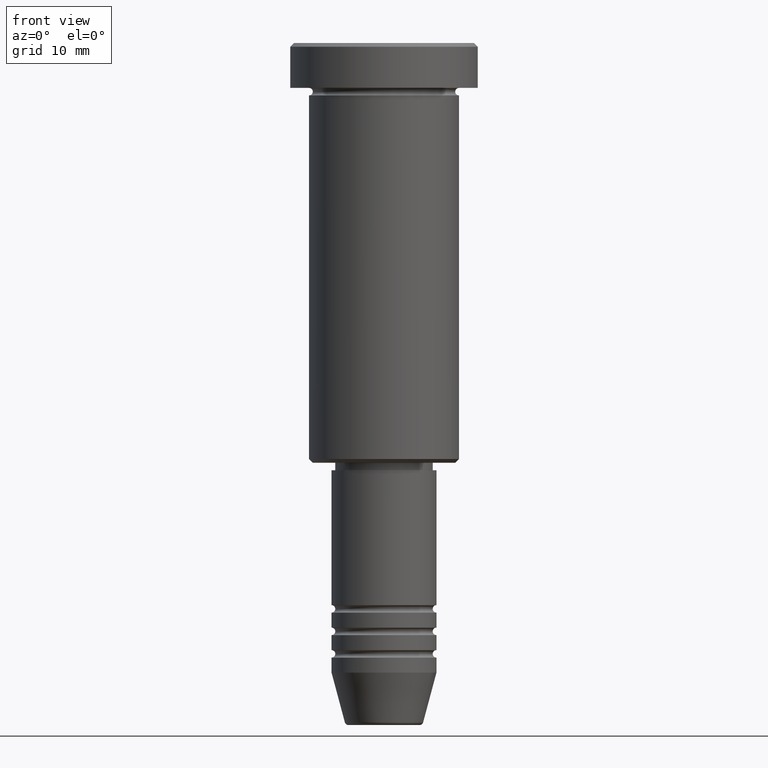
[diagram: clean part render]
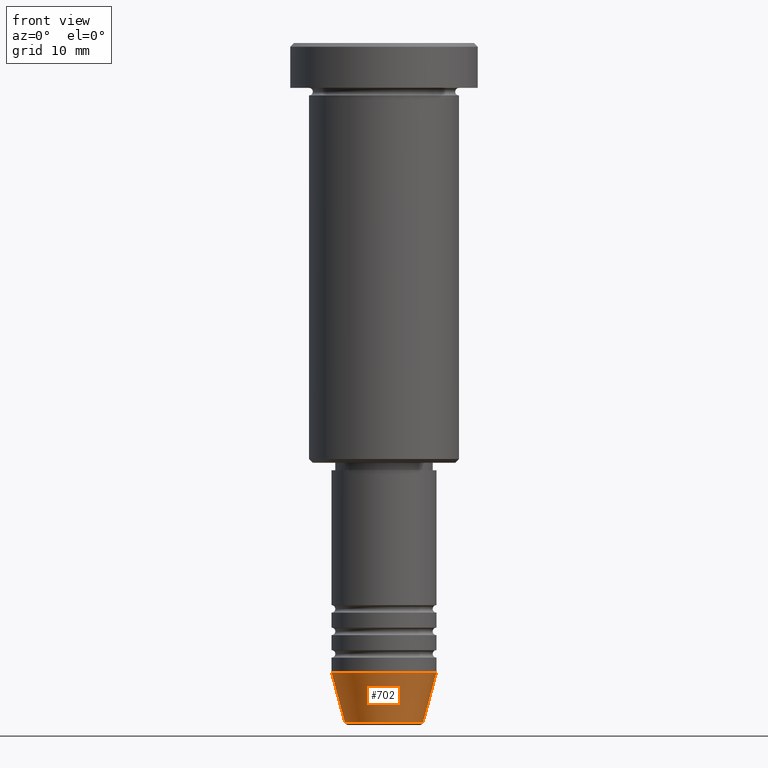
[diagram: same view with one face highlighted and labeled with its STEP entity id]
A machine part, front view. The second image highlights one B-rep face of the part: STEP entity #702.
In plain terms, the highlighted conical surface has half-angle 15 deg.
Its self-contained STEP definition (entity closure, byte-faithful):
#14 = VERTEX_POINT ( 'NONE', #1176 ) ;
#20 = EDGE_LOOP ( 'NONE', ( #448, #486, #604, #716 ) ) ;
#25 = AXIS2_PLACEMENT_3D ( 'NONE', #256, #170, #800 ) ;
#31 = CARTESIAN_POINT ( 'NONE',  ( 7.000000000000000000, 0.000000000000000000, -84.00000000000000000 ) ) ;
#45 = EDGE_CURVE ( 'NONE', #166, #644, #156, .T. ) ;
#140 = AXIS2_PLACEMENT_3D ( 'NONE', #309, #574, #671 ) ;
#149 = EDGE_CURVE ( 'NONE', #516, #166, #741, .T. ) ;
#156 = CIRCLE ( 'NONE', #970, 7.000000000000000000 ) ;
#166 = VERTEX_POINT ( 'NONE', #1122 ) ;
#170 = DIRECTION ( 'NONE',  ( -0.000000000000000000, -0.000000000000000000, 1.000000000000000000 ) ) ;
#198 = CIRCLE ( 'NONE', #140, 5.223655072137193045 ) ;
#256 = CARTESIAN_POINT ( 'NONE',  ( 0.000000000000000000, 0.000000000000000000, -84.00000000000000000 ) ) ;
#298 = CARTESIAN_POINT ( 'NONE',  ( 7.000000000000000000, 0.000000000000000000, -84.00000000000000000 ) ) ;
#309 = CARTESIAN_POINT ( 'NONE',  ( 0.000000000000000000, 0.000000000000000000, -90.62940952255124216 ) ) ;
#317 = CARTESIAN_POINT ( 'NONE',  ( -5.223655072137193045, 7.484830028987060174E-16, -90.62940952255124216 ) ) ;
#388 = DIRECTION ( 'NONE',  ( 0.2588190451025213501, 0.000000000000000000, 0.9659258262890680902 ) ) ;
#448 = ORIENTED_EDGE ( 'NONE', *, *, #149, .F. ) ;
#472 = DIRECTION ( 'NONE',  ( -0.2588190451025213501, 3.169619151431772337E-17, 0.9659258262890680902 ) ) ;
#486 = ORIENTED_EDGE ( 'NONE', *, *, #806, .T. ) ;
#516 = VERTEX_POINT ( 'NONE', #317 ) ;
#574 = DIRECTION ( 'NONE',  ( -0.000000000000000000, -0.000000000000000000, 1.000000000000000000 ) ) ;
#604 = ORIENTED_EDGE ( 'NONE', *, *, #639, .T. ) ;
#639 = EDGE_CURVE ( 'NONE', #14, #644, #852, .T. ) ;
#640 = DIRECTION ( 'NONE',  ( -0.000000000000000000, -0.000000000000000000, 1.000000000000000000 ) ) ;
#644 = VERTEX_POINT ( 'NONE', #298 ) ;
#671 = DIRECTION ( 'NONE',  ( 1.000000000000000000, 0.000000000000000000, 0.000000000000000000 ) ) ;
#702 = ADVANCED_FACE ( 'NONE', ( #1073 ), #997, .T. ) ;
#716 = ORIENTED_EDGE ( 'NONE', *, *, #45, .F. ) ;
#741 = LINE ( 'NONE', #1032, #782 ) ;
#782 = VECTOR ( 'NONE', #472, 1000.000000000000000 ) ;
#800 = DIRECTION ( 'NONE',  ( 1.000000000000000000, 0.000000000000000000, 0.000000000000000000 ) ) ;
#806 = EDGE_CURVE ( 'NONE', #516, #14, #198, .T. ) ;
#852 = LINE ( 'NONE', #31, #1030 ) ;
#906 = DIRECTION ( 'NONE',  ( 1.000000000000000000, 0.000000000000000000, 0.000000000000000000 ) ) ;
#970 = AXIS2_PLACEMENT_3D ( 'NONE', #1082, #640, #906 ) ;
#997 = CONICAL_SURFACE ( 'NONE', #25, 7.000000000000000000, 0.2617993877991500740 ) ;
#1030 = VECTOR ( 'NONE', #388, 1000.000000000000000 ) ;
#1032 = CARTESIAN_POINT ( 'NONE',  ( -7.000000000000000000, 8.572527594031473190E-16, -84.00000000000000000 ) ) ;
#1073 = FACE_OUTER_BOUND ( 'NONE', #20, .T. ) ;
#1082 = CARTESIAN_POINT ( 'NONE',  ( 0.000000000000000000, 0.000000000000000000, -84.00000000000000000 ) ) ;
#1122 = CARTESIAN_POINT ( 'NONE',  ( -7.000000000000000000, 8.572527594031473190E-16, -84.00000000000000000 ) ) ;
#1176 = CARTESIAN_POINT ( 'NONE',  ( 5.223655072137193045, 0.000000000000000000, -90.62940952255124216 ) ) ;